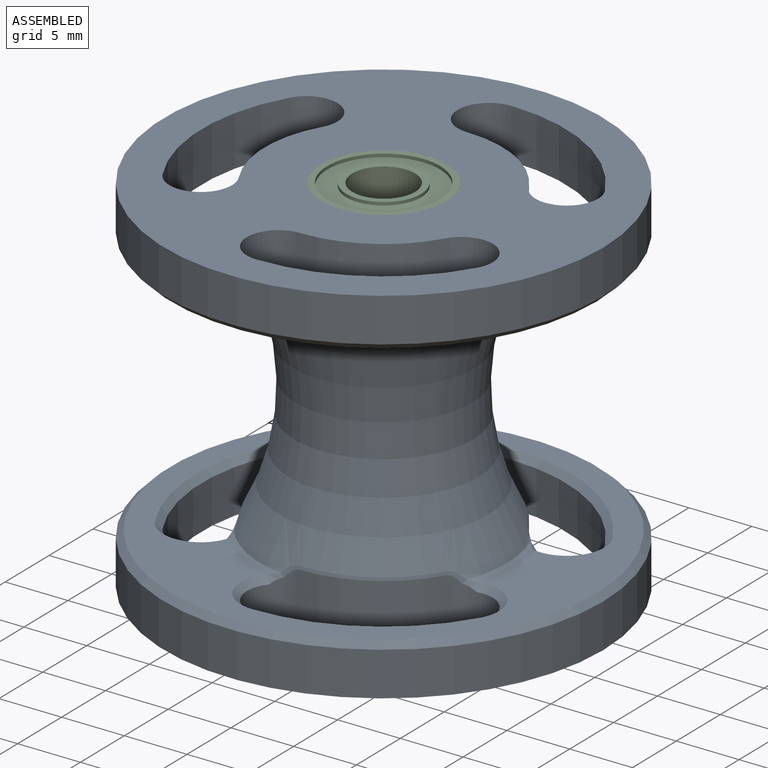
[diagram: assembled view]
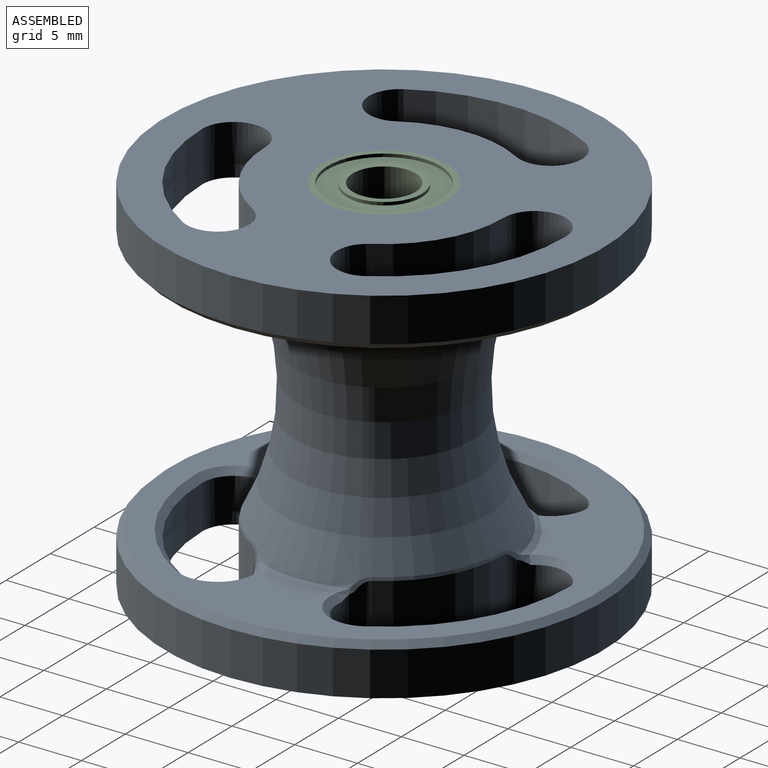
[diagram: assembled view, second angle]
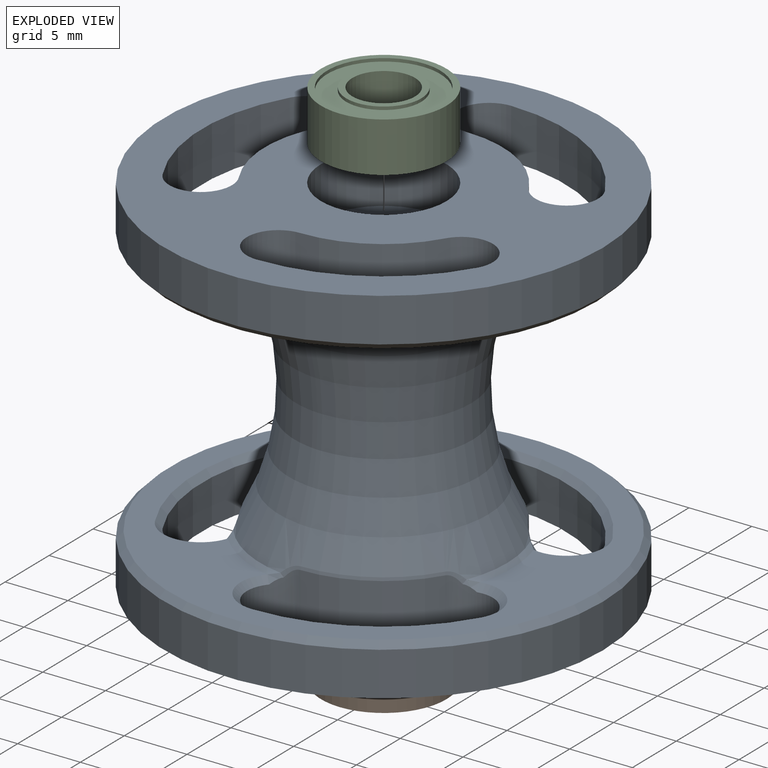
[diagram: exploded view]
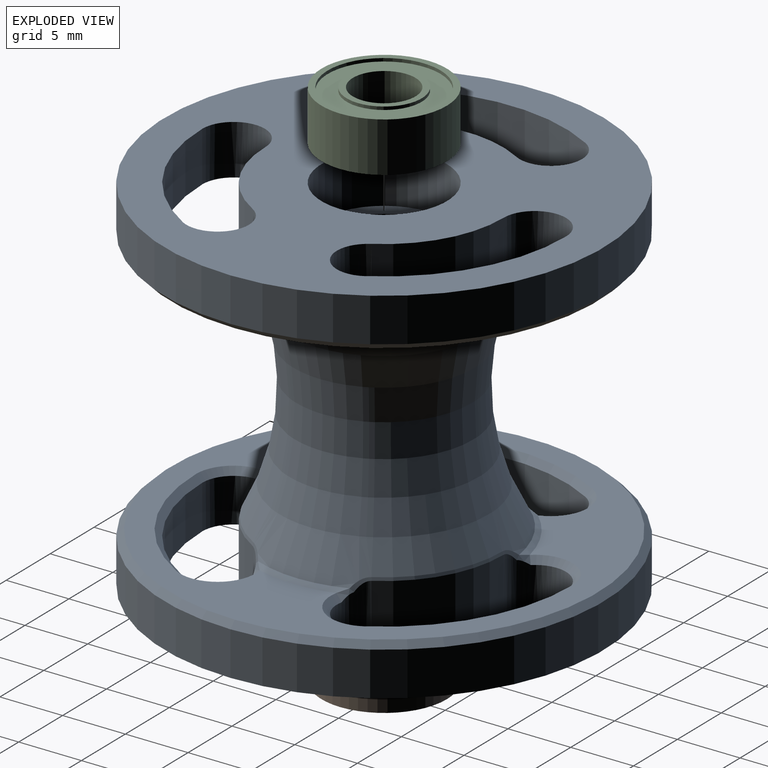
[diagram: exploded view, second angle]
ASSEMBLY  parts=3 mates=4
PART A: 65 faces, bbox 35x35x29 mm
  f0: cylinder r=3.75mm len=21mm, axis (0,0,-1), area 494.8mm2, adj f62,f64
  f1: cylinder r=17.5mm len=35mm, axis (0,0,-1), area 384.8mm2, adj f7,f59
  f2: plane 34x34mm, normal (0,0,1), area 315.6mm2, adj f32,f35,f38,f39,f42,f43,f46,f49
  f3: torus R=26.88mm, axis (0,0,-1), area 1033.1mm2, adj f5,f21,f22,f23,f25,f26,f27,f29
  f4: cylinder r=17.5mm len=35mm, axis (0,0,-1), area 384.8mm2, adj f6,f60
  f5: plane 34x34mm, normal (0,0,-1), area 364.4mm2, adj f3,f20,f21,f23,f24,f25,f26,f28
  f6: plane 35x35mm, normal (0,0,1), area 636.2mm2, adj f4,f20,f21,f22,f23,f24,f25,f26
  f7: plane 35x35mm, normal (0,0,-1), area 636.2mm2, adj f1,f8,f9,f10,f11,f12,f13,f14
  f8: cylinder r=2.5mm len=4.72mm, axis (0,0,-1), area 28.7mm2, adj f7,f9,f11,f43,f44,f47
  f9: cylinder r=9.5mm len=8.23mm, axis (0,0,-1), area 47mm2, adj f7,f8,f10,f40
  f10: cylinder r=2.5mm len=5mm, axis (0,0,-1), area 28.7mm2, adj f7,f9,f11,f33,f35,f36
  f11: cylinder r=14.5mm len=12.56mm, axis (0,0,-1), area 53.1mm2, adj f7,f8,f10,f39
  f12: cylinder r=9.5mm len=9.5mm, axis (0,0,-1), area 47mm2, adj f7,f13,f15,f41
  f13: cylinder r=2.5mm len=4.72mm, axis (0,0,-1), area 28.7mm2, adj f7,f12,f14,f45,f46,f48
  f14: cylinder r=14.5mm len=14.5mm, axis (0,0,-1), area 53.1mm2, adj f7,f13,f15,f42
  f15: cylinder r=2.5mm len=4.72mm, axis (0,0,-1), area 28.7mm2, adj f7,f12,f14,f34,f37,f38
  f16: cylinder r=9.5mm len=8.23mm, axis (0,0,-1), area 47mm2, adj f7,f17,f19,f58
  f17: cylinder r=2.5mm len=4.72mm, axis (0,0,-1), area 28.7mm2, adj f7,f16,f18,f50,f54,f56
  f18: cylinder r=14.5mm len=12.56mm, axis (0,0,-1), area 53.1mm2, adj f7,f17,f19,f49
  f19: cylinder r=2.5mm len=5mm, axis (0,0,-1), area 28.7mm2, adj f7,f16,f18,f53,f55,f57
  f20: cylinder r=14.5mm len=12.56mm, axis (0,0,-1), area 60.7mm2, adj f5,f6,f21,f23
  f21: cylinder r=2.5mm len=5mm, axis (0,0,-1), area 32mm2, adj f3,f5,f6,f20,f22
  f22: cylinder r=9.5mm len=8.23mm, axis (0,0,-1), area 48.2mm2, adj f3,f6,f21,f23
  f23: cylinder r=2.5mm len=4.85mm, axis (0,0,-1), area 32mm2, adj f3,f5,f6,f20,f22
  f24: cylinder r=14.5mm len=14.5mm, axis (0,0,-1), area 60.7mm2, adj f5,f6,f25,f26
  f25: cylinder r=2.5mm len=4.85mm, axis (0,0,-1), area 32mm2, adj f3,f5,f6,f24,f27
  f26: cylinder r=2.5mm len=4.85mm, axis (0,0,-1), area 32mm2, adj f3,f5,f6,f24,f27
  f27: cylinder r=9.5mm len=9.5mm, axis (0,0,-1), area 48.2mm2, adj f3,f6,f25,f26
  f28: cylinder r=14.5mm len=12.56mm, axis (0,0,-1), area 60.7mm2, adj f5,f6,f29,f30
  f29: cylinder r=2.5mm len=5mm, axis (0,0,-1), area 32mm2, adj f3,f5,f6,f28,f31
  f30: cylinder r=2.5mm len=4.85mm, axis (0,0,-1), area 32mm2, adj f3,f5,f6,f28,f31
  f31: cylinder r=9.5mm len=8.23mm, axis (0,0,-1), area 48.2mm2, adj f3,f6,f29,f30
  f32: cone r=9.85mm half-angle=60.5deg, axis (0,0,-1), area 3.4mm2, adj f2,f3,f33,f34
  f33: bspline ~1.16x0.77mm, area 0.5mm2, adj f10,f32,f35,f36
  f34: bspline ~1.12x0.75mm, area 0.5mm2, adj f15,f32,f37,f38
  f35: cone r=2.5mm half-angle=45deg, axis (0,0,1), area 4.4mm2, adj f2,f10,f33,f39
  f36: bspline ~1.42x0.98mm, area 0.5mm2, adj f3,f10,f33,f40
  f37: bspline ~1.38x0.98mm, area 0.5mm2, adj f3,f15,f34,f41
  f38: cone r=2.5mm half-angle=45deg, axis (0,0,1), area 4.4mm2, adj f2,f15,f34,f42
  f39: cone r=14.5mm half-angle=45deg, axis (0,0,1), area 10.9mm2, adj f2,f11,f35,f43
  f40: cone r=9.44mm half-angle=14.3deg, axis (0,0,-1), area 2.5mm2, adj f3,f9,f36,f44
  f41: cone r=9.44mm half-angle=14.3deg, axis (0,0,-1), area 2.5mm2, adj f3,f12,f37,f45
  f42: cone r=14.5mm half-angle=45deg, axis (0,0,1), area 10.9mm2, adj f2,f14,f38,f46
  f43: cone r=2.5mm half-angle=45deg, axis (0,0,1), area 4.4mm2, adj f2,f8,f39,f47
  f44: bspline ~1.23x1.19mm, area 0.5mm2, adj f3,f8,f40,f47
  f45: bspline ~1.61x1.19mm, area 0.5mm2, adj f3,f13,f41,f48
  f46: cone r=2.5mm half-angle=45deg, axis (0,0,1), area 4.4mm2, adj f2,f13,f42,f48
  f47: bspline ~0.89x0.86mm, area 0.5mm2, adj f8,f43,f44,f51
  f48: bspline ~1.13x0.77mm, area 0.5mm2, adj f13,f45,f46,f52
  f49: cone r=14.5mm half-angle=45deg, axis (0,0,1), area 10.9mm2, adj f2,f18,f50,f53
  f50: cone r=2.5mm half-angle=45deg, axis (0,0,1), area 4.4mm2, adj f2,f17,f49,f54
  f51: cone r=9.85mm half-angle=60.5deg, axis (0,0,-1), area 3.4mm2, adj f2,f3,f47,f54
  f52: cone r=9.85mm half-angle=60.5deg, axis (0,0,-1), area 3.4mm2, adj f2,f3,f48,f55
  f53: cone r=2.5mm half-angle=45deg, axis (0,0,1), area 4.4mm2, adj f2,f19,f49,f55
  f54: bspline ~0.9x0.87mm, area 0.5mm2, adj f17,f50,f51,f56
  f55: bspline ~1.15x0.75mm, area 0.5mm2, adj f19,f52,f53,f57
  f56: bspline ~1.11x0.98mm, area 0.5mm2, adj f3,f17,f54,f58
  f57: bspline ~1.42x0.98mm, area 0.5mm2, adj f3,f19,f55,f58
  f58: cone r=9.44mm half-angle=14.3deg, axis (0,0,-1), area 2.5mm2, adj f3,f16,f56,f57
  f59: cone r=17mm half-angle=45deg, axis (0,0,-1), area 76.6mm2, adj f1,f2
  f60: cone r=17.5mm half-angle=45deg, axis (0,0,1), area 76.6mm2, adj f4,f5
  f61: cylinder r=5mm len=10mm, axis (0,0,1), area 125.7mm2, adj f6,f62
  f62: plane 10x10mm, normal (0,0,1), area 34.4mm2, adj f0,f61
  f63: cylinder r=5mm len=10mm, axis (0,0,-1), area 125.7mm2, adj f7,f64
  f64: plane 10x10mm, normal (0,0,-1), area 34.4mm2, adj f0,f63
PART B: 12 faces, bbox 10x10x4 mm
  f0: plane 6x6mm, normal (0,0,-1), area 8.6mm2, adj f2,f9
  f1: plane 6x6mm, normal (0,0,1), area 8.6mm2, adj f2,f6
  f2: cylinder r=2.5mm len=5mm, axis (0,0,-1), area 62.8mm2, adj f0,f1
  f3: cylinder r=5mm len=10mm, axis (0,0,-1), area 125.7mm2, adj f4,f5
  f4: plane 10x10mm, normal (0,0,1), area 14.9mm2, adj f3,f7
  f5: plane 10x10mm, normal (0,0,-1), area 14.9mm2, adj f3,f10
  f6: cylinder r=3mm len=6mm, axis (0,0,1), area 4.7mm2, adj f1,f8
  f7: cylinder r=4.5mm len=9mm, axis (0,0,1), area 7.1mm2, adj f4,f8
  f8: plane 9x9mm, normal (0,0,1), area 35.3mm2, adj f6,f7
  f9: cylinder r=3mm len=6mm, axis (0,0,-1), area 4.7mm2, adj f0,f11
  f10: cylinder r=4.5mm len=9mm, axis (0,0,-1), area 7.1mm2, adj f5,f11
  f11: plane 9x9mm, normal (0,0,-1), area 35.3mm2, adj f9,f10
PART C: same geometry as B
PLACE A t=(0.06,0.17,2)mm fixed
PLACE B t=(0.06,0.17,0)mm
PLACE C t=(0.06,0.17,25)mm
MATE planar B.f7 <-> A.f12  axis (0,0,1) through (0.06,0.17,4)mm
MATE cylindrical C.f3 <-> A.f61  axis (0,0,-1) through (0.06,0.17,25)mm
MATE planar C.f7 <-> A.f9  axis (0,0,-1) through (0.06,0.17,25)mm
MATE cylindrical B.f3 <-> A.f63  axis (0,0,-1) through (0.06,0.17,2)mm
